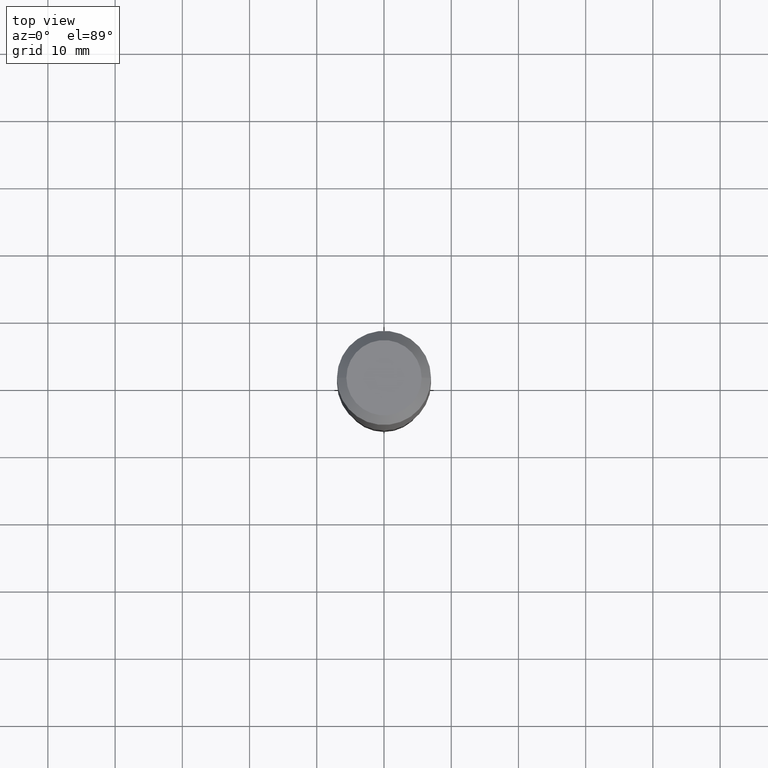
[diagram: clean part render]
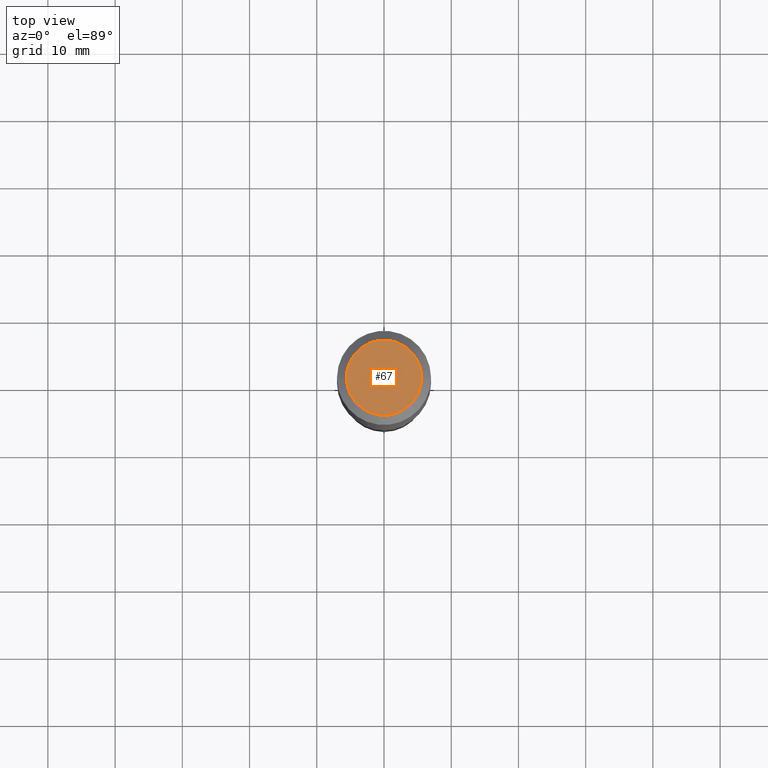
[diagram: same view with one face highlighted and labeled with its STEP entity id]
A machine part, top view. The second image highlights one B-rep face of the part: STEP entity #67.
In plain terms, the highlighted planar face has unit normal (0, -0, -1).
Its self-contained STEP definition (entity closure, byte-faithful):
#2 = DIRECTION ( 'NONE',  ( -2.445468806185136597E-29, 3.491481338843145583E-15, 1.000000000000000000 ) ) ;
#5 = CARTESIAN_POINT ( 'NONE',  ( -0.2204800000000000093, 1.635828836874783961E-15, 3.860086710901350968E-18 ) ) ;
#6 = DIRECTION ( 'NONE',  ( 1.000000000000000000, -6.982962677686266711E-15, 4.876132675269083677E-29 ) ) ;
#40 = CIRCLE ( 'NONE', #64, 0.2204800000000000093 ) ;
#64 = AXIS2_PLACEMENT_3D ( 'NONE', #102, #411, #136 ) ;
#66 = VERTEX_POINT ( 'NONE', #5 ) ;
#67 = ADVANCED_FACE ( 'NONE', ( #227 ), #344, .F. ) ;
#84 = EDGE_CURVE ( 'NONE', #66, #242, #202, .T. ) ;
#102 = CARTESIAN_POINT ( 'NONE',  ( -9.439721640706190018E-47, 1.347742071746724849E-32, 3.860086710912454339E-18 ) ) ;
#124 = CARTESIAN_POINT ( 'NONE',  ( 0.2204800000000000093, -1.797903149065768707E-15, 3.860086710924123164E-18 ) ) ;
#136 = DIRECTION ( 'NONE',  ( 1.000000000000000000, -6.982962677686266711E-15, 4.876132675269083677E-29 ) ) ;
#150 = AXIS2_PLACEMENT_3D ( 'NONE', #224, #2, #6 ) ;
#202 = CIRCLE ( 'NONE', #150, 0.2204800000000000093 ) ;
#224 = CARTESIAN_POINT ( 'NONE',  ( -9.439721640706190018E-47, 1.347742071746724849E-32, 3.860086710912454339E-18 ) ) ;
#227 = FACE_OUTER_BOUND ( 'NONE', #324, .T. ) ;
#242 = VERTEX_POINT ( 'NONE', #124 ) ;
#301 = DIRECTION ( 'NONE',  ( -1.000000000000000000, 6.982962677686265922E-15, -4.876176775795935793E-29 ) ) ;
#302 = DIRECTION ( 'NONE',  ( 2.438088387897960049E-29, -3.491481338843145188E-15, -1.000000000000000000 ) ) ;
#324 = EDGE_LOOP ( 'NONE', ( #359, #328 ) ) ;
#328 = ORIENTED_EDGE ( 'NONE', *, *, #425, .T. ) ;
#344 = PLANE ( 'NONE',  #467 ) ;
#359 = ORIENTED_EDGE ( 'NONE', *, *, #84, .T. ) ;
#411 = DIRECTION ( 'NONE',  ( -2.445468806185136597E-29, 3.491481338843145583E-15, 1.000000000000000000 ) ) ;
#418 = CARTESIAN_POINT ( 'NONE',  ( -4.719860820353095009E-47, 6.738710358733624243E-33, 1.930043355456227170E-18 ) ) ;
#425 = EDGE_CURVE ( 'NONE', #242, #66, #40, .T. ) ;
#467 = AXIS2_PLACEMENT_3D ( 'NONE', #418, #302, #301 ) ;